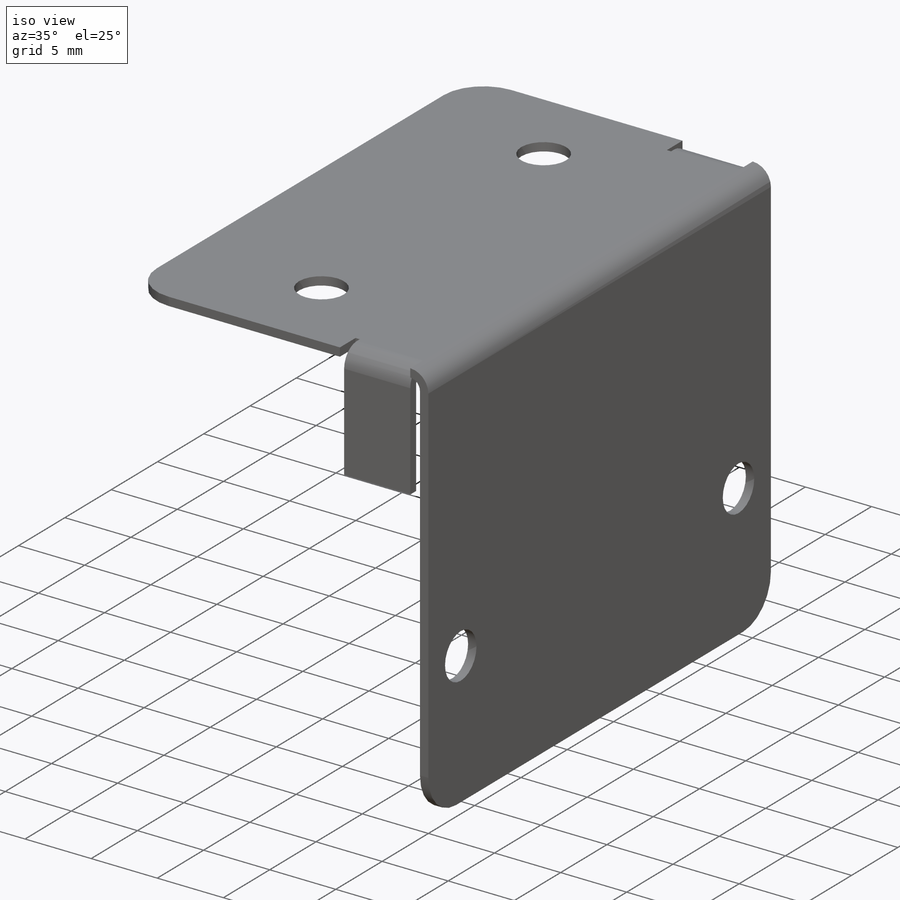
[diagram: iso view]
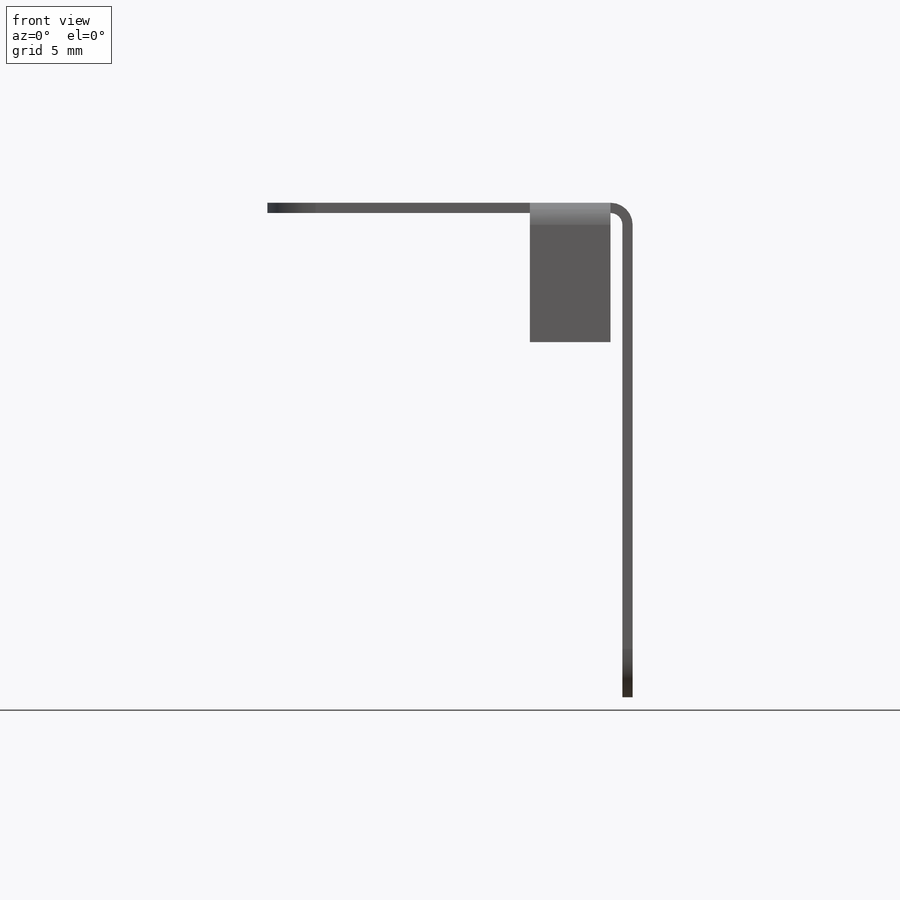
[diagram: front view]
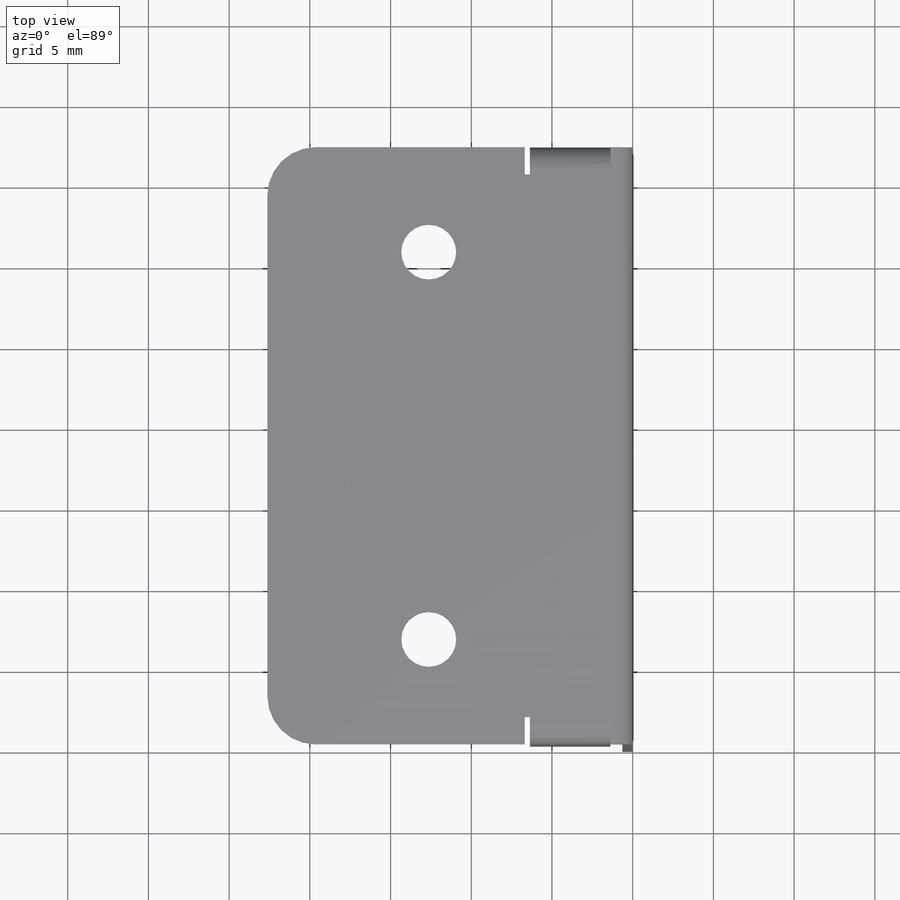
[diagram: top view]
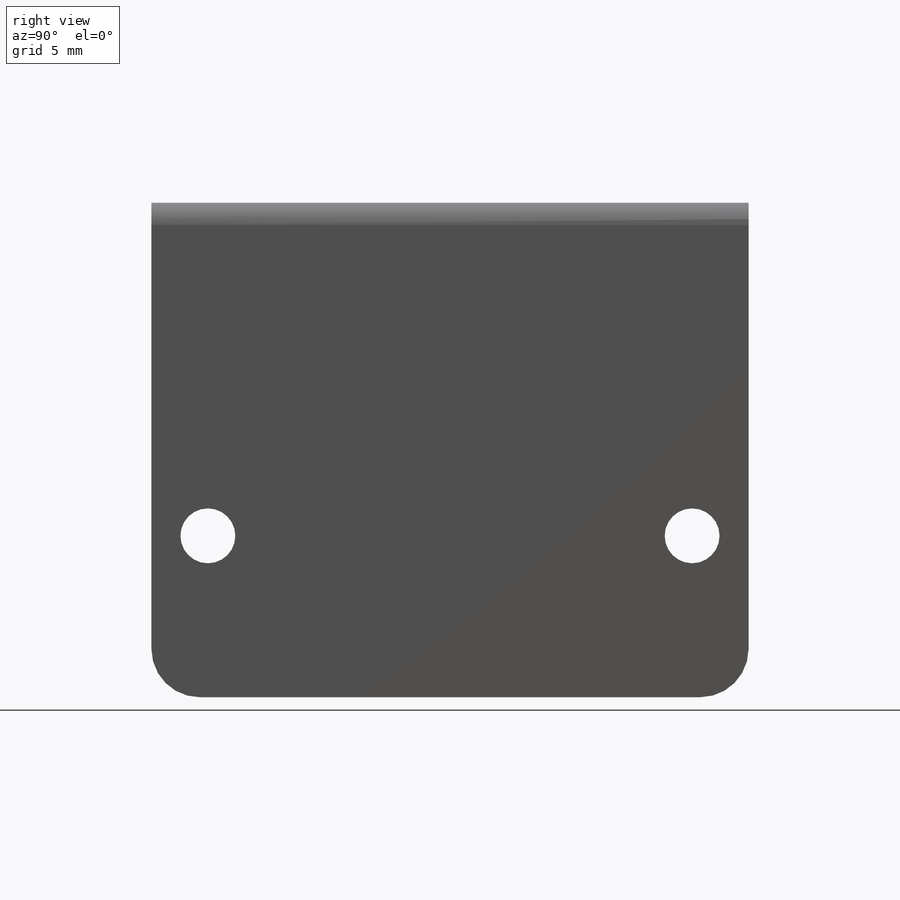
[diagram: right view]
SOLIDWORKS PART (.sldprt)
format: sldprt  version: not decoded by parser v0  size: 297,472 bytes
history: native  units: mm
features: sketch x8, sheet_metal_op x4, cut_extrude x2, material x1, fillet x1 + 3 further entries (+11 scaffold rows collapsed; 1 parser-record rows omitted)
feature tree (31):
  scaffold x11  (default folders/planes/origin — collapsed)
  material  "Material <not specified>"
  sketch  "Sketch2"  dims[D1=37.0mm D2=30.0mm]
  sheet_metal_op  "Sheet-Metal1"
  sheet_metal_op  "Base-Flange1"
  sketch  "Sketch7"  dims[c1.D1=22.0mm c2.D1=0.7366mm c2.D4=90.0deg c2.D5=1.0 c2.D8=0.3175mm c2.D9=0.3175mm c3.D1=0.7366mm c3.D2=500.0mm c3.D3=0.0mm c3.D6=10.0mm c3.D7=22.0mm c3.Edge-Flange2=0.0]
  sketch  "Sketch10"  dims[D1=5.0mm]
  sheet_metal_op  "EdgeBend2"  Edge-Flange3=0
  sketch  "Sketch13"  dims[D1=5.0mm]
  sheet_metal_op  "EdgeBend3"
  sketch  "Sketch14"  dims[D3=3.4mm D4=3.4mm D1=30.0mm D2=10.0mm]
  cut_extrude  "Cut-Extrude1"  Depth=10mm
  fillet  "Fillet1"  Radius=3mm
  sketch  "Sketch15"  dims[D2=3.4mm D3=3.4mm D1=24.0mm D4=10.0mm]
  cut_extrude  "Cut-Extrude2"  Depth=10mm
  "Flat-Pattern1"
  sketch  "Bend-Lines1"
  sketch  "Bounding-Box1"
  "Flatten-<EdgeBend2>1"
  "Flatten-<EdgeBend3>1"
  parser-record x1  (decoder bookkeeping rows leaked as tree rows — omitted from the tree; the rows remain in map.json)
decode coverage: 10 of 15 modeling features carry decoded parameters; 3 rows unclassified (native names shown)
note: suppression state not decoded; provenance and decode notes live in map.json
